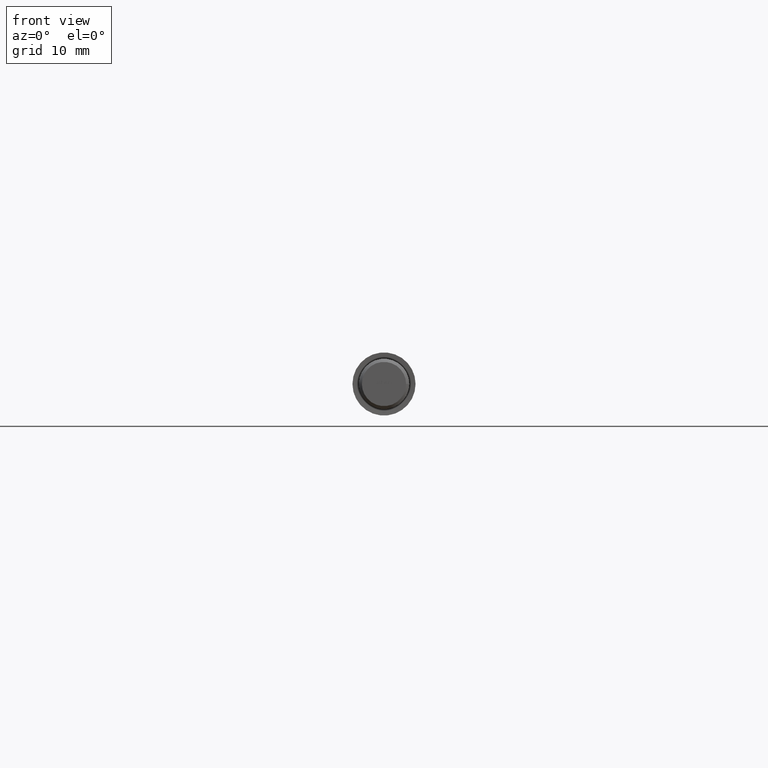
[diagram: clean part render]
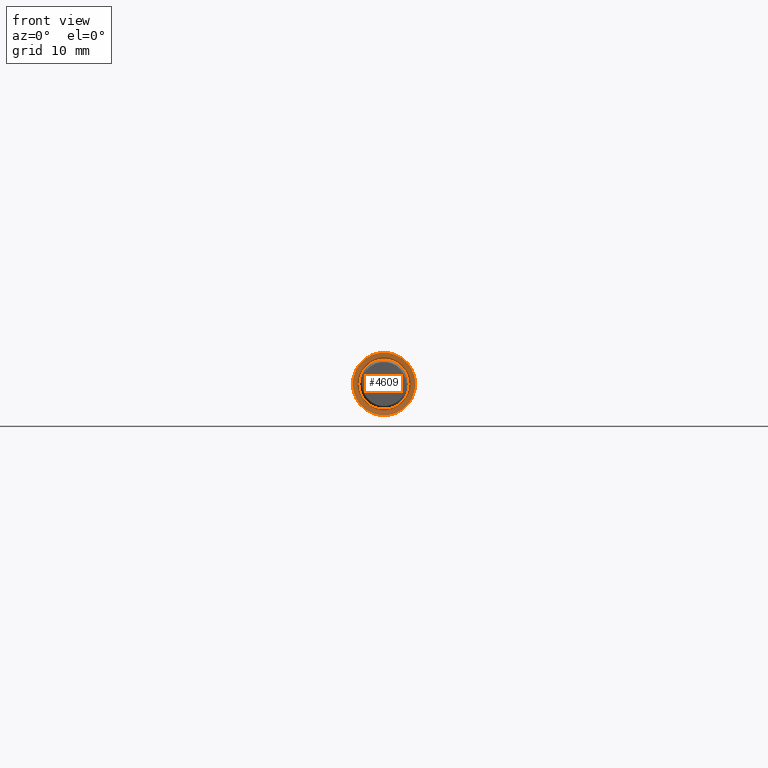
[diagram: same view with one face highlighted and labeled with its STEP entity id]
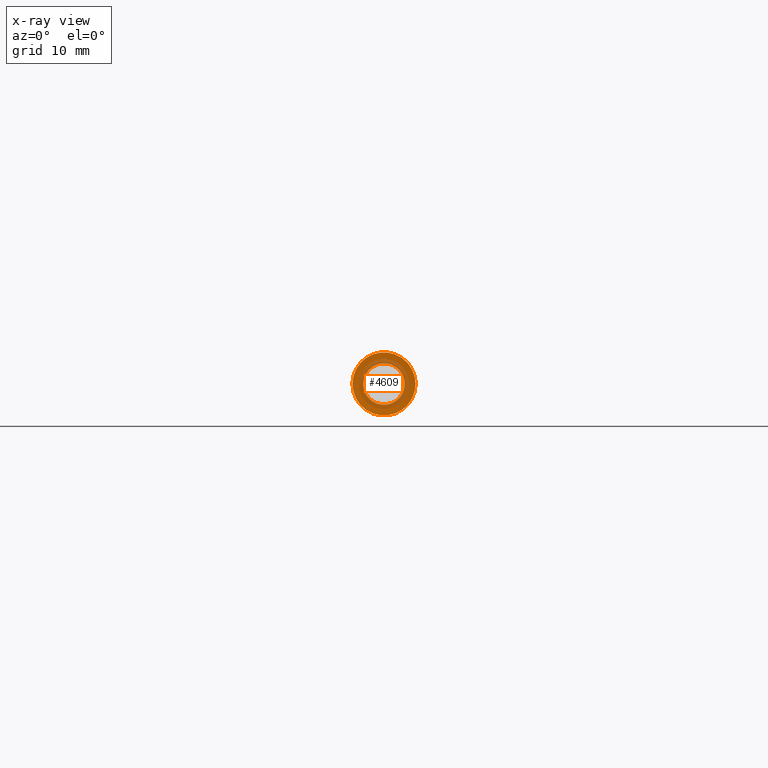
[diagram: x-ray of the same camera — body ghosted, the highlighted face saturated]
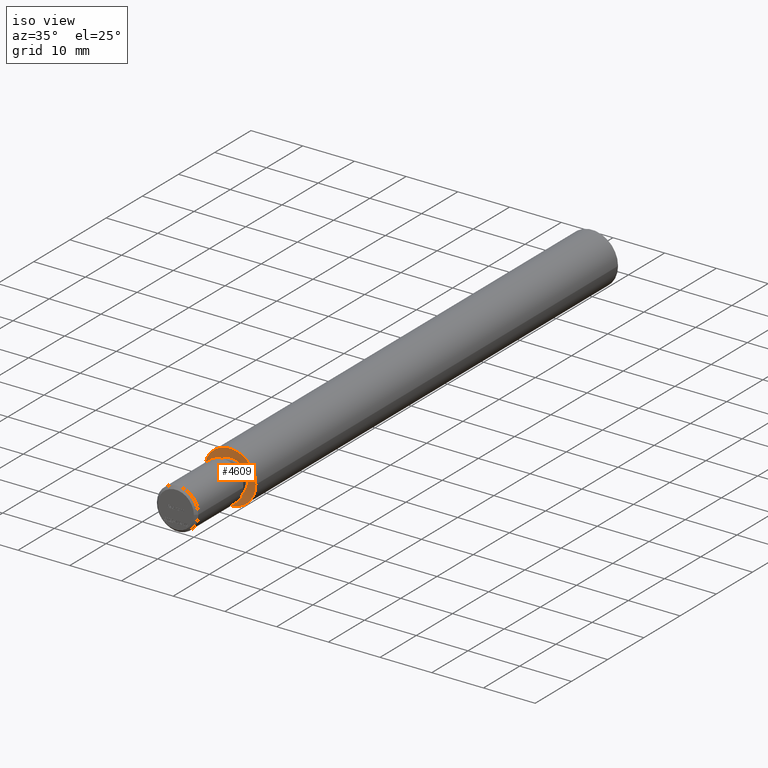
[diagram: same view with one face highlighted and labeled with its STEP entity id]
A machine part, front view. The second image highlights one B-rep face of the part: STEP entity #4609.
The next image is the same camera in x-ray: the body ghosted, the highlighted face saturated — about 37% of this face is hidden behind the body in this view.
A second angle (iso view) of the same face is appended — the face is thin or edge-on in the first view.
In plain terms, the highlighted conical surface has half-angle 85 deg.
Its self-contained STEP definition (entity closure, byte-faithful):
#873 = CARTESIAN_POINT ( 'NONE',  ( 1.674721690771509485E-31, 0.000000000000000000, 0.000000000000000000 ) ) ;
#1264 = AXIS2_PLACEMENT_3D ( 'NONE', #6665, #9742, #5511 ) ;
#1885 = DIRECTION ( 'NONE',  ( 1.674721690771509348E-33, -1.000000000000000000, -0.000000000000000000 ) ) ;
#1920 = ORIENTED_EDGE ( 'NONE', *, *, #8032, .F. ) ;
#1968 = CONICAL_SURFACE ( 'NONE', #8124, 3.267278182716023327, 1.483529864195180403 ) ;
#2011 = AXIS2_PLACEMENT_3D ( 'NONE', #873, #1885, #12483 ) ;
#2635 = CIRCLE ( 'NONE', #1264, 3.267278182716023327 ) ;
#4609 = ADVANCED_FACE ( 'NONE', ( #8559, #11705 ), #1968, .F. ) ;
#5325 = EDGE_LOOP ( 'NONE', ( #1920 ) ) ;
#5511 = DIRECTION ( 'NONE',  ( 1.000000000000000000, 0.000000000000000000, 0.000000000000000000 ) ) ;
#5744 = CARTESIAN_POINT ( 'NONE',  ( 1.672182921276310080E-31, 0.1515935160563853246, 0.000000000000000000 ) ) ;
#5928 = VERTEX_POINT ( 'NONE', #6342 ) ;
#6342 = CARTESIAN_POINT ( 'NONE',  ( 5.000000000000005329, 8.373608453857555636E-33, 0.000000000000000000 ) ) ;
#6665 = CARTESIAN_POINT ( 'NONE',  ( 1.672182921276310080E-31, 0.1515935160563853246, 0.000000000000000000 ) ) ;
#6888 = DIRECTION ( 'NONE',  ( 1.674721690771509348E-33, -1.000000000000000000, -0.000000000000000000 ) ) ;
#7303 = EDGE_LOOP ( 'NONE', ( #8566 ) ) ;
#8032 = EDGE_CURVE ( 'NONE', #8722, #8722, #2635, .T. ) ;
#8124 = AXIS2_PLACEMENT_3D ( 'NONE', #5744, #6888, #13070 ) ;
#8204 = CIRCLE ( 'NONE', #2011, 5.000000000000005329 ) ;
#8515 = CARTESIAN_POINT ( 'NONE',  ( 3.267278182716023327, 0.1515935160563853246, 0.000000000000000000 ) ) ;
#8559 = FACE_OUTER_BOUND ( 'NONE', #7303, .T. ) ;
#8566 = ORIENTED_EDGE ( 'NONE', *, *, #10679, .T. ) ;
#8722 = VERTEX_POINT ( 'NONE', #8515 ) ;
#9742 = DIRECTION ( 'NONE',  ( 1.674721690771509348E-33, -1.000000000000000000, -0.000000000000000000 ) ) ;
#10679 = EDGE_CURVE ( 'NONE', #5928, #5928, #8204, .T. ) ;
#11705 = FACE_BOUND ( 'NONE', #5325, .T. ) ;
#12483 = DIRECTION ( 'NONE',  ( 1.000000000000000000, 1.674721690771509348E-33, 0.000000000000000000 ) ) ;
#13070 = DIRECTION ( 'NONE',  ( 1.000000000000000000, 0.000000000000000000, 0.000000000000000000 ) ) ;